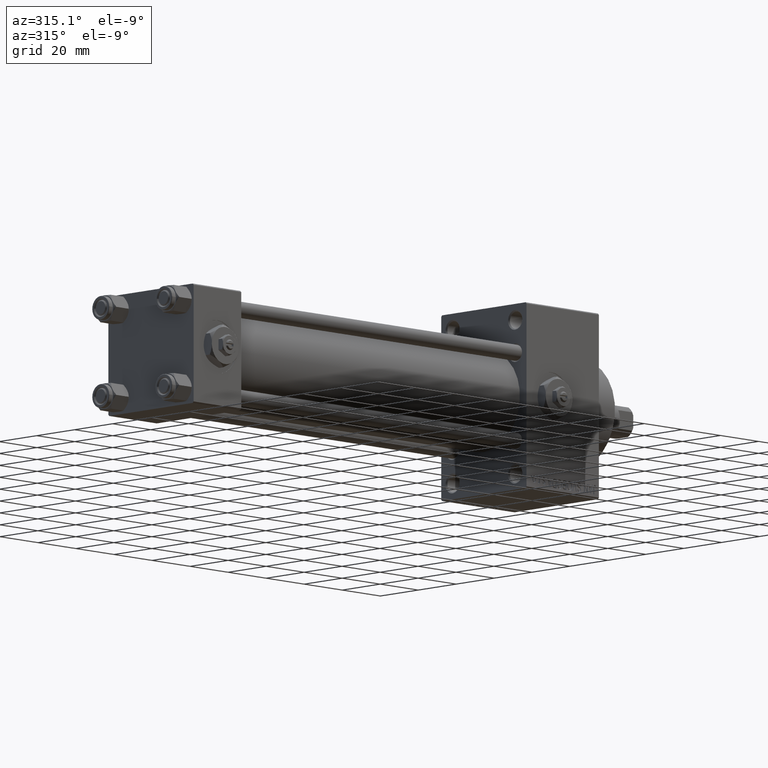
[diagram: clean part render]
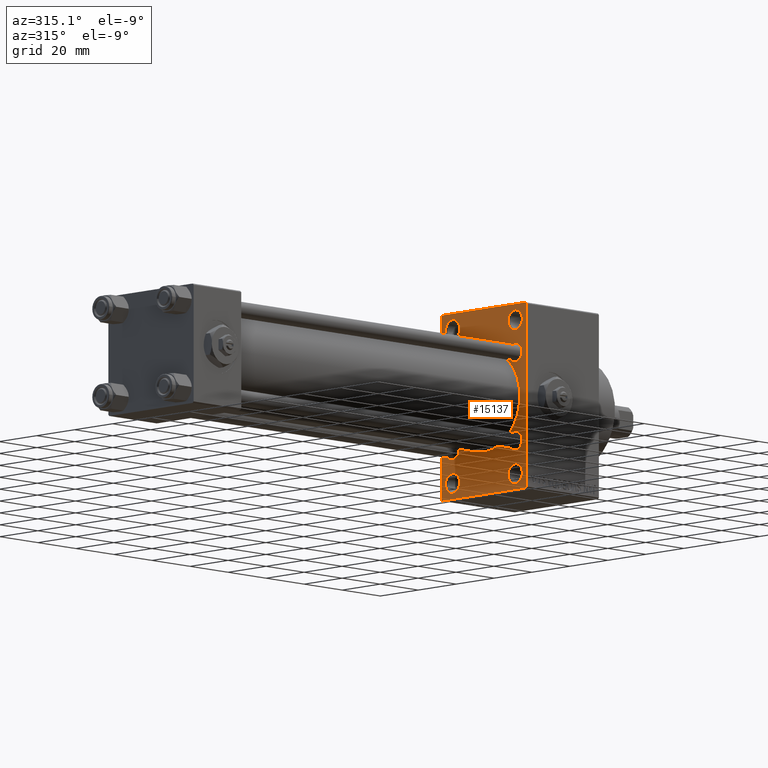
[diagram: same view with one face highlighted and labeled with its STEP entity id]
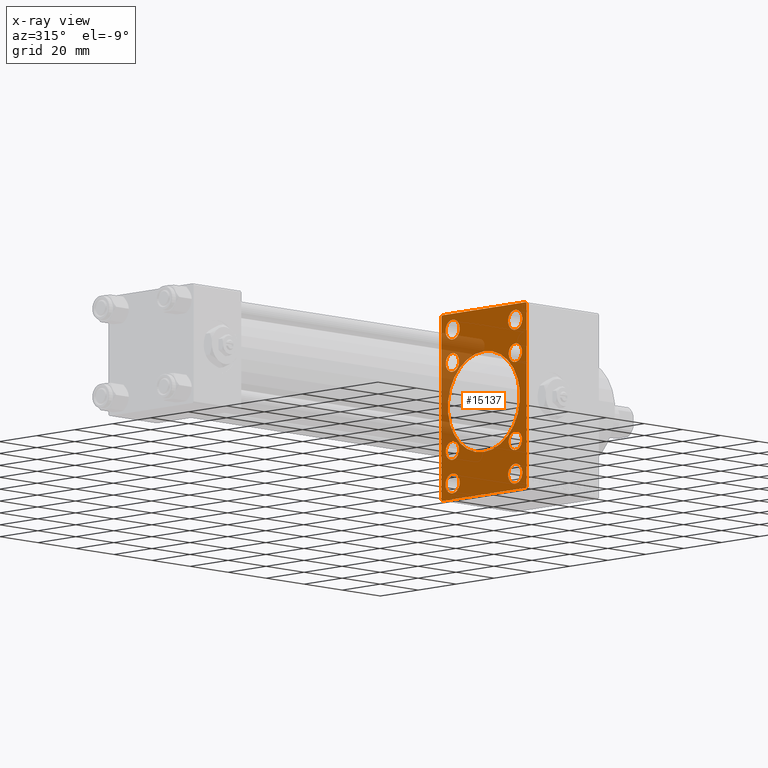
[diagram: x-ray of the same camera — body ghosted, the highlighted face saturated]
A machine part, auxiliary view. The second image highlights one B-rep face of the part: STEP entity #15137.
The next image is the same camera in x-ray: the body ghosted, the highlighted face saturated — about 19% of this face is hidden behind the body in this view.
In plain terms, the highlighted planar face has unit normal (-1, 0, 0).
Its self-contained STEP definition (entity closure, byte-faithful):
#220 = LINE ( 'NONE', #27266, #23803 ) ;
#1047 = EDGE_CURVE ( 'NONE', #8169, #36943, #26554, .T. ) ;
#1157 = ORIENTED_EDGE ( 'NONE', *, *, #1047, .T. ) ;
#1432 = AXIS2_PLACEMENT_3D ( 'NONE', #29046, #19360, #41702 ) ;
#1581 = ORIENTED_EDGE ( 'NONE', *, *, #17976, .T. ) ;
#1997 = VERTEX_POINT ( 'NONE', #14384 ) ;
#2094 = AXIS2_PLACEMENT_3D ( 'NONE', #20202, #23654, #12742 ) ;
#2357 = CARTESIAN_POINT ( 'NONE',  ( 175.0000000000000000, 16.59999999999999787, -13.09999999999999787 ) ) ;
#2498 = DIRECTION ( 'NONE',  ( 0.000000000000000000, 0.000000000000000000, 1.000000000000000000 ) ) ;
#3342 = CARTESIAN_POINT ( 'NONE',  ( 175.0000000000000000, 22.49999999999999645, -35.00000000000000000 ) ) ;
#3546 = DIRECTION ( 'NONE',  ( -1.000000000000000000, 0.000000000000000000, -0.000000000000000000 ) ) ;
#3858 = DIRECTION ( 'NONE',  ( 0.000000000000000000, 0.000000000000000000, 1.000000000000000000 ) ) ;
#3981 = CARTESIAN_POINT ( 'NONE',  ( 175.0000000000000000, -16.50000000000000000, -25.25000000000009948 ) ) ;
#4033 = LINE ( 'NONE', #46230, #48656 ) ;
#4156 = ORIENTED_EDGE ( 'NONE', *, *, #9034, .T. ) ;
#4163 = AXIS2_PLACEMENT_3D ( 'NONE', #17640, #39978, #2498 ) ;
#4274 = CIRCLE ( 'NONE', #37517, 3.500000000000006661 ) ;
#4396 = DIRECTION ( 'NONE',  ( 1.000000000000000000, 0.000000000000000000, 0.000000000000000000 ) ) ;
#4431 = CARTESIAN_POINT ( 'NONE',  ( 175.0000000000000000, -16.50000000000000000, 29.00000000000000711 ) ) ;
#4519 = EDGE_LOOP ( 'NONE', ( #8118, #17313 ) ) ;
#4576 = VECTOR ( 'NONE', #34437, 1000.000000000000000 ) ;
#4762 = ORIENTED_EDGE ( 'NONE', *, *, #12394, .T. ) ;
#4770 = DIRECTION ( 'NONE',  ( 0.000000000000000000, -1.000000000000000000, 0.000000000000000000 ) ) ;
#4803 = ORIENTED_EDGE ( 'NONE', *, *, #28450, .T. ) ;
#4808 = ORIENTED_EDGE ( 'NONE', *, *, #21555, .T. ) ;
#5040 = EDGE_CURVE ( 'NONE', #48685, #45837, #31446, .T. ) ;
#5478 = DIRECTION ( 'NONE',  ( 1.000000000000000000, 0.000000000000000000, 0.000000000000000000 ) ) ;
#5561 = AXIS2_PLACEMENT_3D ( 'NONE', #27319, #41960, #23091 ) ;
#5716 = ORIENTED_EDGE ( 'NONE', *, *, #26614, .T. ) ;
#5819 = AXIS2_PLACEMENT_3D ( 'NONE', #14388, #25316, #10423 ) ;
#5856 = CIRCLE ( 'NONE', #14562, 19.00000000000000000 ) ;
#6466 = DIRECTION ( 'NONE',  ( 0.000000000000000000, 0.000000000000000000, 1.000000000000000000 ) ) ;
#6523 = FACE_BOUND ( 'NONE', #10713, .T. ) ;
#6601 = VERTEX_POINT ( 'NONE', #40821 ) ;
#6669 = VERTEX_POINT ( 'NONE', #44560 ) ;
#6769 = FACE_BOUND ( 'NONE', #35690, .T. ) ;
#6923 = LINE ( 'NONE', #44667, #46024 ) ;
#7008 = DIRECTION ( 'NONE',  ( 0.000000000000000000, 0.000000000000000000, -1.000000000000000000 ) ) ;
#7084 = CARTESIAN_POINT ( 'NONE',  ( 175.0000000000000000, -28.49999999999999645, 28.49999999999999645 ) ) ;
#7367 = EDGE_LOOP ( 'NONE', ( #4808, #4762 ) ) ;
#7516 = FACE_BOUND ( 'NONE', #14178, .T. ) ;
#7566 = CARTESIAN_POINT ( 'NONE',  ( 175.0000000000000000, -16.59999999999999076, 13.10000000000000142 ) ) ;
#7621 = DIRECTION ( 'NONE',  ( 0.000000000000000000, 0.000000000000000000, 1.000000000000000000 ) ) ;
#7640 = VERTEX_POINT ( 'NONE', #13027 ) ;
#8118 = ORIENTED_EDGE ( 'NONE', *, *, #21722, .T. ) ;
#8169 = VERTEX_POINT ( 'NONE', #3981 ) ;
#8460 = EDGE_CURVE ( 'NONE', #16653, #36996, #29277, .T. ) ;
#9034 = EDGE_CURVE ( 'NONE', #45837, #48685, #15824, .T. ) ;
#9257 = CARTESIAN_POINT ( 'NONE',  ( 175.0000000000000000, 16.50000000000000000, -28.99999999999999289 ) ) ;
#9758 = DIRECTION ( 'NONE',  ( 0.000000000000000000, 0.000000000000000000, 1.000000000000000000 ) ) ;
#9824 = CARTESIAN_POINT ( 'NONE',  ( 175.0000000000000000, -21.99999999999998934, 35.00000000000000000 ) ) ;
#10355 = EDGE_CURVE ( 'NONE', #10405, #34546, #6923, .T. ) ;
#10405 = VERTEX_POINT ( 'NONE', #23043 ) ;
#10423 = DIRECTION ( 'NONE',  ( 0.000000000000000000, 0.000000000000000000, -1.000000000000000000 ) ) ;
#10657 = DIRECTION ( 'NONE',  ( 0.000000000000000000, 0.7071067811865474617, -0.7071067811865474617 ) ) ;
#10713 = EDGE_LOOP ( 'NONE', ( #27232, #43036 ) ) ;
#11235 = FACE_BOUND ( 'NONE', #4519, .T. ) ;
#11537 = EDGE_LOOP ( 'NONE', ( #5716, #34299 ) ) ;
#11627 = DIRECTION ( 'NONE',  ( 0.000000000000000000, 0.000000000000000000, 1.000000000000000000 ) ) ;
#11633 = DIRECTION ( 'NONE',  ( -0.000000000000000000, -0.7071067811865474617, -0.7071067811865474617 ) ) ;
#11921 = CARTESIAN_POINT ( 'NONE',  ( 175.0000000000000000, -22.50000000000000355, -34.50000000000000000 ) ) ;
#12027 = DIRECTION ( 'NONE',  ( 1.000000000000000000, 0.000000000000000000, 0.000000000000000000 ) ) ;
#12136 = ORIENTED_EDGE ( 'NONE', *, *, #5040, .T. ) ;
#12394 = EDGE_CURVE ( 'NONE', #1997, #35284, #43709, .T. ) ;
#12546 = AXIS2_PLACEMENT_3D ( 'NONE', #38585, #31636, #19731 ) ;
#12742 = DIRECTION ( 'NONE',  ( 0.000000000000000000, 0.000000000000000000, 1.000000000000000000 ) ) ;
#12856 = AXIS2_PLACEMENT_3D ( 'NONE', #45846, #4396, #7621 ) ;
#13027 = CARTESIAN_POINT ( 'NONE',  ( 175.0000000000000000, 16.50000000000000000, 32.74999999999989342 ) ) ;
#13054 = AXIS2_PLACEMENT_3D ( 'NONE', #40426, #5478, #13177 ) ;
#13115 = VERTEX_POINT ( 'NONE', #34715 ) ;
#13177 = DIRECTION ( 'NONE',  ( 0.000000000000000000, 0.000000000000000000, 1.000000000000000000 ) ) ;
#13546 = LINE ( 'NONE', #24955, #33894 ) ;
#14054 = CARTESIAN_POINT ( 'NONE',  ( 175.0000000000000000, 16.50000000000000000, -32.74999999999989342 ) ) ;
#14178 = EDGE_LOOP ( 'NONE', ( #1157, #27724 ) ) ;
#14384 = CARTESIAN_POINT ( 'NONE',  ( 175.0000000000000000, 16.59999999999999787, -20.10000000000000853 ) ) ;
#14388 = CARTESIAN_POINT ( 'NONE',  ( 175.0000000000000000, -2.602085213965210642E-15, 0.000000000000000000 ) ) ;
#14562 = AXIS2_PLACEMENT_3D ( 'NONE', #41006, #37276, #7008 ) ;
#15137 = ADVANCED_FACE ( 'NONE', ( #25636, #7516, #6769, #22397, #6523, #48222, #18429, #44498, #11235, #21901 ), #41009, .T. ) ;
#15353 = DIRECTION ( 'NONE',  ( 1.000000000000000000, 0.000000000000000000, 0.000000000000000000 ) ) ;
#15354 = CARTESIAN_POINT ( 'NONE',  ( 175.0000000000000000, -2.602085213965210642E-15, 19.00000000000000000 ) ) ;
#15764 = CIRCLE ( 'NONE', #45879, 3.500000000000006661 ) ;
#15818 = CARTESIAN_POINT ( 'NONE',  ( 175.0000000000000000, -16.50000000000000000, -32.74999999999989342 ) ) ;
#15824 = CIRCLE ( 'NONE', #47540, 3.749999999999895639 ) ;
#16452 = DIRECTION ( 'NONE',  ( 0.000000000000000000, 0.000000000000000000, -1.000000000000000000 ) ) ;
#16514 = CIRCLE ( 'NONE', #1432, 3.500000000000006661 ) ;
#16555 = CARTESIAN_POINT ( 'NONE',  ( 175.0000000000000000, -16.59999999999999076, -13.10000000000000142 ) ) ;
#16653 = VERTEX_POINT ( 'NONE', #7566 ) ;
#16669 = EDGE_CURVE ( 'NONE', #28885, #48878, #40809, .T. ) ;
#16674 = CARTESIAN_POINT ( 'NONE',  ( 175.0000000000000000, 16.50000000000000000, -25.25000000000009948 ) ) ;
#16950 = DIRECTION ( 'NONE',  ( 1.000000000000000000, 0.000000000000000000, 0.000000000000000000 ) ) ;
#17043 = VERTEX_POINT ( 'NONE', #16555 ) ;
#17313 = ORIENTED_EDGE ( 'NONE', *, *, #21016, .T. ) ;
#17478 = DIRECTION ( 'NONE',  ( 1.000000000000000000, 0.000000000000000000, 0.000000000000000000 ) ) ;
#17598 = CARTESIAN_POINT ( 'NONE',  ( 175.0000000000000000, 21.99999999999999645, -35.00000000000000000 ) ) ;
#17640 = CARTESIAN_POINT ( 'NONE',  ( 175.0000000000000000, 16.50000000000000000, 29.00000000000000355 ) ) ;
#17653 = CIRCLE ( 'NONE', #42220, 3.749999999999885425 ) ;
#17845 = VERTEX_POINT ( 'NONE', #31333 ) ;
#17855 = VERTEX_POINT ( 'NONE', #42746 ) ;
#17860 = CARTESIAN_POINT ( 'NONE',  ( 175.0000000000000000, 22.49999999999999645, 34.50000000000000000 ) ) ;
#17881 = CARTESIAN_POINT ( 'NONE',  ( 175.0000000000000000, -16.59999999999999076, -16.60000000000000853 ) ) ;
#17976 = EDGE_CURVE ( 'NONE', #7640, #6669, #30296, .T. ) ;
#18121 = DIRECTION ( 'NONE',  ( 1.000000000000000000, 0.000000000000000000, 0.000000000000000000 ) ) ;
#18132 = EDGE_CURVE ( 'NONE', #17043, #17855, #39023, .T. ) ;
#18429 = FACE_BOUND ( 'NONE', #7367, .T. ) ;
#18497 = CIRCLE ( 'NONE', #5819, 19.00000000000000000 ) ;
#18629 = CARTESIAN_POINT ( 'NONE',  ( 175.0000000000000000, -2.752562955852396712E-16, -19.00000000000000000 ) ) ;
#18971 = DIRECTION ( 'NONE',  ( 0.000000000000000000, -1.000000000000000000, 0.000000000000000000 ) ) ;
#18973 = VECTOR ( 'NONE', #16452, 1000.000000000000000 ) ;
#19118 = VERTEX_POINT ( 'NONE', #18629 ) ;
#19188 = CIRCLE ( 'NONE', #12856, 3.500000000000003109 ) ;
#19360 = DIRECTION ( 'NONE',  ( 1.000000000000000000, 0.000000000000000000, 0.000000000000000000 ) ) ;
#19731 = DIRECTION ( 'NONE',  ( 0.000000000000000000, 0.000000000000000000, 1.000000000000000000 ) ) ;
#19844 = CIRCLE ( 'NONE', #5561, 3.749999999999833467 ) ;
#20027 = EDGE_LOOP ( 'NONE', ( #31197, #22522 ) ) ;
#20202 = CARTESIAN_POINT ( 'NONE',  ( 175.0000000000000000, 16.50000000000000000, -28.99999999999999289 ) ) ;
#21016 = EDGE_CURVE ( 'NONE', #19118, #26841, #18497, .T. ) ;
#21177 = CARTESIAN_POINT ( 'NONE',  ( 175.0000000000000000, 16.59999999999999787, -16.60000000000000497 ) ) ;
#21403 = AXIS2_PLACEMENT_3D ( 'NONE', #33343, #17478, #36819 ) ;
#21404 = CARTESIAN_POINT ( 'NONE',  ( 175.0000000000000000, 16.50000000000000000, 29.00000000000000355 ) ) ;
#21555 = EDGE_CURVE ( 'NONE', #35284, #1997, #4274, .T. ) ;
#21722 = EDGE_CURVE ( 'NONE', #26841, #19118, #5856, .T. ) ;
#21893 = EDGE_CURVE ( 'NONE', #10405, #33559, #4033, .T. ) ;
#21901 = FACE_OUTER_BOUND ( 'NONE', #43696, .T. ) ;
#22363 = ORIENTED_EDGE ( 'NONE', *, *, #46591, .T. ) ;
#22397 = FACE_BOUND ( 'NONE', #37887, .T. ) ;
#22522 = ORIENTED_EDGE ( 'NONE', *, *, #46005, .T. ) ;
#22753 = ORIENTED_EDGE ( 'NONE', *, *, #10355, .T. ) ;
#22986 = ORIENTED_EDGE ( 'NONE', *, *, #45567, .F. ) ;
#23043 = CARTESIAN_POINT ( 'NONE',  ( 175.0000000000000000, 21.99999999999999645, 35.00000000000000000 ) ) ;
#23091 = DIRECTION ( 'NONE',  ( 0.000000000000000000, 0.000000000000000000, 1.000000000000000000 ) ) ;
#23226 = CARTESIAN_POINT ( 'NONE',  ( 175.0000000000000000, -22.50000000000000355, 34.50000000000000000 ) ) ;
#23433 = EDGE_LOOP ( 'NONE', ( #22363, #39124 ) ) ;
#23654 = DIRECTION ( 'NONE',  ( 1.000000000000000000, 0.000000000000000000, 0.000000000000000000 ) ) ;
#23803 = VECTOR ( 'NONE', #11633, 1000.000000000000114 ) ;
#24420 = DIRECTION ( 'NONE',  ( 1.000000000000000000, 0.000000000000000000, 0.000000000000000000 ) ) ;
#24808 = VECTOR ( 'NONE', #37356, 1000.000000000000114 ) ;
#24955 = CARTESIAN_POINT ( 'NONE',  ( 175.0000000000000000, -28.49999999999999645, -28.49999999999999645 ) ) ;
#25106 = CARTESIAN_POINT ( 'NONE',  ( 175.0000000000000000, 16.59999999999999787, 16.60000000000000497 ) ) ;
#25316 = DIRECTION ( 'NONE',  ( 1.000000000000000000, 0.000000000000000000, 0.000000000000000000 ) ) ;
#25636 = FACE_BOUND ( 'NONE', #11537, .T. ) ;
#25711 = CARTESIAN_POINT ( 'NONE',  ( 175.0000000000000000, -16.59999999999999076, 16.60000000000000853 ) ) ;
#25755 = ORIENTED_EDGE ( 'NONE', *, *, #16669, .T. ) ;
#25851 = VERTEX_POINT ( 'NONE', #11921 ) ;
#26554 = CIRCLE ( 'NONE', #13054, 3.749999999999895639 ) ;
#26614 = EDGE_CURVE ( 'NONE', #13115, #29569, #19844, .T. ) ;
#26841 = VERTEX_POINT ( 'NONE', #15354 ) ;
#26986 = CARTESIAN_POINT ( 'NONE',  ( 175.0000000000000000, -16.59999999999999076, 20.10000000000001208 ) ) ;
#27087 = VECTOR ( 'NONE', #18971, 1000.000000000000000 ) ;
#27232 = ORIENTED_EDGE ( 'NONE', *, *, #33259, .T. ) ;
#27266 = CARTESIAN_POINT ( 'NONE',  ( 175.0000000000000000, 28.49999999999999645, -28.49999999999999645 ) ) ;
#27319 = CARTESIAN_POINT ( 'NONE',  ( 175.0000000000000000, -16.50000000000000000, 29.00000000000000711 ) ) ;
#27724 = ORIENTED_EDGE ( 'NONE', *, *, #42700, .T. ) ;
#27870 = DIRECTION ( 'NONE',  ( 0.000000000000000000, 0.000000000000000000, 1.000000000000000000 ) ) ;
#28372 = CIRCLE ( 'NONE', #12546, 3.500000000000006661 ) ;
#28450 = EDGE_CURVE ( 'NONE', #34546, #6601, #31587, .T. ) ;
#28833 = DIRECTION ( 'NONE',  ( 0.000000000000000000, 0.000000000000000000, 1.000000000000000000 ) ) ;
#28885 = VERTEX_POINT ( 'NONE', #17598 ) ;
#29046 = CARTESIAN_POINT ( 'NONE',  ( 175.0000000000000000, -16.59999999999999076, -16.60000000000000853 ) ) ;
#29277 = CIRCLE ( 'NONE', #38810, 3.500000000000003109 ) ;
#29569 = VERTEX_POINT ( 'NONE', #30366 ) ;
#29852 = EDGE_CURVE ( 'NONE', #6601, #28885, #220, .T. ) ;
#29987 = ORIENTED_EDGE ( 'NONE', *, *, #38947, .T. ) ;
#30296 = CIRCLE ( 'NONE', #4163, 3.749999999999885425 ) ;
#30324 = VERTEX_POINT ( 'NONE', #23226 ) ;
#30366 = CARTESIAN_POINT ( 'NONE',  ( 175.0000000000000000, -16.50000000000000000, 25.25000000000017408 ) ) ;
#30764 = VERTEX_POINT ( 'NONE', #31371 ) ;
#31197 = ORIENTED_EDGE ( 'NONE', *, *, #18132, .T. ) ;
#31204 = LINE ( 'NONE', #42619, #4576 ) ;
#31333 = CARTESIAN_POINT ( 'NONE',  ( 175.0000000000000000, 16.59999999999999787, 13.09999999999999609 ) ) ;
#31349 = CARTESIAN_POINT ( 'NONE',  ( 175.0000000000000000, 22.49999999999999645, 35.00000000000000000 ) ) ;
#31371 = CARTESIAN_POINT ( 'NONE',  ( 175.0000000000000000, 16.59999999999999787, 20.10000000000001208 ) ) ;
#31446 = CIRCLE ( 'NONE', #2094, 3.749999999999895639 ) ;
#31587 = LINE ( 'NONE', #31349, #18973 ) ;
#31636 = DIRECTION ( 'NONE',  ( 1.000000000000000000, 0.000000000000000000, 0.000000000000000000 ) ) ;
#31906 = CARTESIAN_POINT ( 'NONE',  ( 175.0000000000000000, -21.99999999999998934, -35.00000000000000000 ) ) ;
#31965 = ORIENTED_EDGE ( 'NONE', *, *, #21893, .F. ) ;
#32664 = AXIS2_PLACEMENT_3D ( 'NONE', #17881, #18121, #6466 ) ;
#32932 = ORIENTED_EDGE ( 'NONE', *, *, #29852, .T. ) ;
#33259 = EDGE_CURVE ( 'NONE', #36996, #16653, #19188, .T. ) ;
#33343 = CARTESIAN_POINT ( 'NONE',  ( 175.0000000000000000, 16.59999999999999787, -16.60000000000000497 ) ) ;
#33559 = VERTEX_POINT ( 'NONE', #9824 ) ;
#33891 = LINE ( 'NONE', #7084, #24808 ) ;
#33894 = VECTOR ( 'NONE', #34560, 1000.000000000000114 ) ;
#34299 = ORIENTED_EDGE ( 'NONE', *, *, #40163, .T. ) ;
#34437 = DIRECTION ( 'NONE',  ( 0.000000000000000000, 0.000000000000000000, -1.000000000000000000 ) ) ;
#34546 = VERTEX_POINT ( 'NONE', #17860 ) ;
#34551 = ORIENTED_EDGE ( 'NONE', *, *, #45725, .T. ) ;
#34560 = DIRECTION ( 'NONE',  ( 0.000000000000000000, -0.7071067811865474617, 0.7071067811865474617 ) ) ;
#34715 = CARTESIAN_POINT ( 'NONE',  ( 175.0000000000000000, -16.50000000000000000, 32.74999999999984368 ) ) ;
#34951 = AXIS2_PLACEMENT_3D ( 'NONE', #37536, #3546, #48469 ) ;
#35284 = VERTEX_POINT ( 'NONE', #2357 ) ;
#35615 = EDGE_CURVE ( 'NONE', #6669, #7640, #17653, .T. ) ;
#35690 = EDGE_LOOP ( 'NONE', ( #4156, #12136 ) ) ;
#35949 = AXIS2_PLACEMENT_3D ( 'NONE', #4431, #15353, #11627 ) ;
#36819 = DIRECTION ( 'NONE',  ( 0.000000000000000000, 0.000000000000000000, 1.000000000000000000 ) ) ;
#36943 = VERTEX_POINT ( 'NONE', #15818 ) ;
#36996 = VERTEX_POINT ( 'NONE', #26986 ) ;
#37276 = DIRECTION ( 'NONE',  ( 1.000000000000000000, 0.000000000000000000, 0.000000000000000000 ) ) ;
#37356 = DIRECTION ( 'NONE',  ( -0.000000000000000000, 0.7071067811865474617, 0.7071067811865474617 ) ) ;
#37517 = AXIS2_PLACEMENT_3D ( 'NONE', #21177, #24420, #43772 ) ;
#37536 = CARTESIAN_POINT ( 'NONE',  ( 175.0000000000000000, 0.000000000000000000, 0.000000000000000000 ) ) ;
#37887 = EDGE_LOOP ( 'NONE', ( #1581, #43265 ) ) ;
#38087 = DIRECTION ( 'NONE',  ( 0.000000000000000000, 0.000000000000000000, 1.000000000000000000 ) ) ;
#38317 = CIRCLE ( 'NONE', #35949, 3.749999999999833467 ) ;
#38585 = CARTESIAN_POINT ( 'NONE',  ( 175.0000000000000000, 16.59999999999999787, 16.60000000000000497 ) ) ;
#38810 = AXIS2_PLACEMENT_3D ( 'NONE', #25711, #48540, #3858 ) ;
#38947 = EDGE_CURVE ( 'NONE', #30324, #33559, #33891, .T. ) ;
#39023 = CIRCLE ( 'NONE', #32664, 3.500000000000006661 ) ;
#39124 = ORIENTED_EDGE ( 'NONE', *, *, #48331, .T. ) ;
#39205 = CIRCLE ( 'NONE', #39244, 3.749999999999895639 ) ;
#39244 = AXIS2_PLACEMENT_3D ( 'NONE', #45794, #12027, #38087 ) ;
#39978 = DIRECTION ( 'NONE',  ( 1.000000000000000000, 0.000000000000000000, 0.000000000000000000 ) ) ;
#40163 = EDGE_CURVE ( 'NONE', #29569, #13115, #38317, .T. ) ;
#40426 = CARTESIAN_POINT ( 'NONE',  ( 175.0000000000000000, -16.50000000000000000, -28.99999999999999289 ) ) ;
#40809 = LINE ( 'NONE', #3342, #27087 ) ;
#40821 = CARTESIAN_POINT ( 'NONE',  ( 175.0000000000000000, 22.49999999999999645, -34.50000000000000000 ) ) ;
#41006 = CARTESIAN_POINT ( 'NONE',  ( 175.0000000000000000, -2.602085213965210642E-15, 0.000000000000000000 ) ) ;
#41009 = PLANE ( 'NONE',  #34951 ) ;
#41702 = DIRECTION ( 'NONE',  ( 0.000000000000000000, 0.000000000000000000, 1.000000000000000000 ) ) ;
#41960 = DIRECTION ( 'NONE',  ( 1.000000000000000000, 0.000000000000000000, 0.000000000000000000 ) ) ;
#42220 = AXIS2_PLACEMENT_3D ( 'NONE', #21404, #43761, #9758 ) ;
#42619 = CARTESIAN_POINT ( 'NONE',  ( 175.0000000000000000, -22.50000000000000355, 35.00000000000000000 ) ) ;
#42700 = EDGE_CURVE ( 'NONE', #36943, #8169, #39205, .T. ) ;
#42746 = CARTESIAN_POINT ( 'NONE',  ( 175.0000000000000000, -16.59999999999999076, -20.10000000000001208 ) ) ;
#43036 = ORIENTED_EDGE ( 'NONE', *, *, #8460, .T. ) ;
#43265 = ORIENTED_EDGE ( 'NONE', *, *, #35615, .T. ) ;
#43696 = EDGE_LOOP ( 'NONE', ( #25755, #34551, #22986, #29987, #31965, #22753, #4803, #32932 ) ) ;
#43709 = CIRCLE ( 'NONE', #21403, 3.500000000000006661 ) ;
#43761 = DIRECTION ( 'NONE',  ( 1.000000000000000000, 0.000000000000000000, 0.000000000000000000 ) ) ;
#43772 = DIRECTION ( 'NONE',  ( 0.000000000000000000, 0.000000000000000000, 1.000000000000000000 ) ) ;
#44498 = FACE_BOUND ( 'NONE', #20027, .T. ) ;
#44560 = CARTESIAN_POINT ( 'NONE',  ( 175.0000000000000000, 16.50000000000000000, 25.25000000000011724 ) ) ;
#44667 = CARTESIAN_POINT ( 'NONE',  ( 175.0000000000000000, 28.49999999999999645, 28.49999999999999645 ) ) ;
#45567 = EDGE_CURVE ( 'NONE', #30324, #25851, #31204, .T. ) ;
#45725 = EDGE_CURVE ( 'NONE', #48878, #25851, #13546, .T. ) ;
#45794 = CARTESIAN_POINT ( 'NONE',  ( 175.0000000000000000, -16.50000000000000000, -28.99999999999999289 ) ) ;
#45837 = VERTEX_POINT ( 'NONE', #16674 ) ;
#45846 = CARTESIAN_POINT ( 'NONE',  ( 175.0000000000000000, -16.59999999999999076, 16.60000000000000853 ) ) ;
#45879 = AXIS2_PLACEMENT_3D ( 'NONE', #25106, #16950, #28833 ) ;
#46005 = EDGE_CURVE ( 'NONE', #17855, #17043, #16514, .T. ) ;
#46024 = VECTOR ( 'NONE', #10657, 1000.000000000000114 ) ;
#46230 = CARTESIAN_POINT ( 'NONE',  ( 175.0000000000000000, 22.49999999999999645, 35.00000000000000000 ) ) ;
#46591 = EDGE_CURVE ( 'NONE', #30764, #17845, #28372, .T. ) ;
#47470 = DIRECTION ( 'NONE',  ( 1.000000000000000000, 0.000000000000000000, 0.000000000000000000 ) ) ;
#47540 = AXIS2_PLACEMENT_3D ( 'NONE', #9257, #47470, #27870 ) ;
#48222 = FACE_BOUND ( 'NONE', #23433, .T. ) ;
#48331 = EDGE_CURVE ( 'NONE', #17845, #30764, #15764, .T. ) ;
#48469 = DIRECTION ( 'NONE',  ( -0.000000000000000000, 0.000000000000000000, 1.000000000000000000 ) ) ;
#48540 = DIRECTION ( 'NONE',  ( 1.000000000000000000, 0.000000000000000000, 0.000000000000000000 ) ) ;
#48656 = VECTOR ( 'NONE', #4770, 1000.000000000000000 ) ;
#48685 = VERTEX_POINT ( 'NONE', #14054 ) ;
#48878 = VERTEX_POINT ( 'NONE', #31906 ) ;